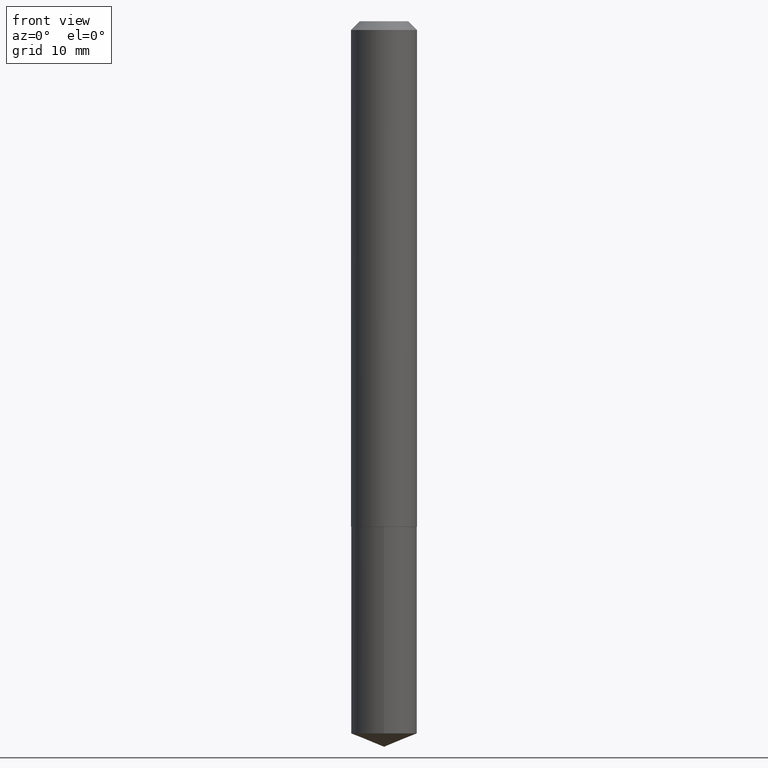
[diagram: clean part render]
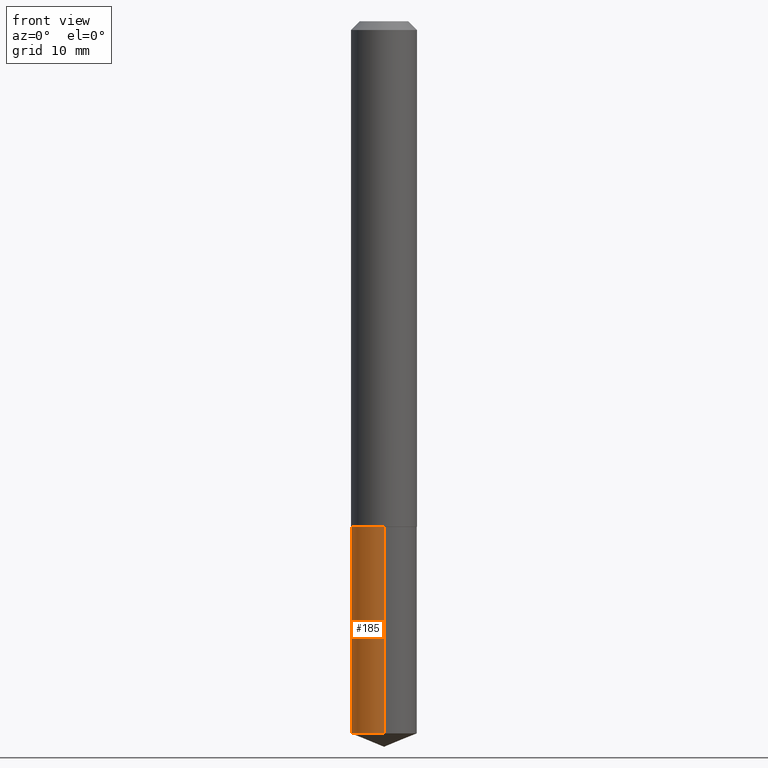
[diagram: same view with one face highlighted and labeled with its STEP entity id]
A machine part, front view. The second image highlights one B-rep face of the part: STEP entity #185.
In plain terms, the highlighted cylindrical surface (edge-blend (fillet) strip) has radius 2.9997 mm, axis along (-0, 0, 1).
Its self-contained STEP definition (entity closure, byte-faithful):
#9 = CARTESIAN_POINT ( 'NONE',  ( 8.391509709327404185E-16, 0.1180999999999910732, -2.550684502728868264 ) ) ;
#27 = VERTEX_POINT ( 'NONE', #9 ) ;
#36 = CYLINDRICAL_SURFACE ( 'NONE', #338, 0.1180999999999999966 ) ;
#44 = DIRECTION ( 'NONE',  ( -6.982962677686265922E-15, -1.000000000000000000, 4.626330217890369336E-15 ) ) ;
#61 = DIRECTION ( 'NONE',  ( -2.431157795965363335E-29, 3.511975520009978246E-15, 1.000000000000000000 ) ) ;
#80 = AXIS2_PLACEMENT_3D ( 'NONE', #143, #61, #265 ) ;
#84 = ORIENTED_EDGE ( 'NONE', *, *, #194, .T. ) ;
#102 = CARTESIAN_POINT ( 'NONE',  ( 8.391509709327224719E-16, 0.1180999999999936823, -1.811000000000000387 ) ) ;
#117 = VERTEX_POINT ( 'NONE', #267 ) ;
#131 = LINE ( 'NONE', #102, #258 ) ;
#143 = CARTESIAN_POINT ( 'NONE',  ( 6.227033753365331904E-29, -8.920826570759473542E-15, -2.550684502728867376 ) ) ;
#162 = CIRCLE ( 'NONE', #227, 0.1180999999999999966 ) ;
#163 = CARTESIAN_POINT ( 'NONE',  ( -8.246878922347036920E-16, -0.1181000000000063110, -1.810999999999999277 ) ) ;
#185 = ADVANCED_FACE ( 'NONE', ( #296 ), #36, .T. ) ;
#194 = EDGE_CURVE ( 'NONE', #292, #363, #230, .T. ) ;
#199 = EDGE_CURVE ( 'NONE', #27, #292, #353, .T. ) ;
#210 = DIRECTION ( 'NONE',  ( -2.431157795965363335E-29, 3.511975520009978246E-15, 1.000000000000000000 ) ) ;
#213 = EDGE_LOOP ( 'NONE', ( #244, #351, #84, #276 ) ) ;
#215 = CARTESIAN_POINT ( 'NONE',  ( 4.428744008001282238E-29, -6.323072704644935995E-15, -1.810999999999999943 ) ) ;
#227 = AXIS2_PLACEMENT_3D ( 'NONE', #215, #337, #44 ) ;
#230 = LINE ( 'NONE', #354, #326 ) ;
#231 = EDGE_CURVE ( 'NONE', #27, #117, #131, .T. ) ;
#244 = ORIENTED_EDGE ( 'NONE', *, *, #231, .F. ) ;
#258 = VECTOR ( 'NONE', #280, 39.37007874015748143 ) ;
#265 = DIRECTION ( 'NONE',  ( -6.982962677686265922E-15, -1.000000000000000000, 4.626330217890369336E-15 ) ) ;
#267 = CARTESIAN_POINT ( 'NONE',  ( 8.391509709327405171E-16, 0.1180999999999936684, -1.811000000000000387 ) ) ;
#276 = ORIENTED_EDGE ( 'NONE', *, *, #313, .F. ) ;
#280 = DIRECTION ( 'NONE',  ( -2.431157795965363055E-29, 3.511975520009978640E-15, 1.000000000000000000 ) ) ;
#292 = VERTEX_POINT ( 'NONE', #309 ) ;
#296 = FACE_OUTER_BOUND ( 'NONE', #213, .T. ) ;
#309 = CARTESIAN_POINT ( 'NONE',  ( -8.246878922346858440E-16, -0.1181000000000088923, -2.550684502728866931 ) ) ;
#313 = EDGE_CURVE ( 'NONE', #117, #363, #162, .T. ) ;
#326 = VECTOR ( 'NONE', #327, 39.37007874015748143 ) ;
#327 = DIRECTION ( 'NONE',  ( -2.431157795965363055E-29, 3.511975520009978640E-15, 1.000000000000000000 ) ) ;
#337 = DIRECTION ( 'NONE',  ( -2.431157795965363335E-29, 3.511975520009978246E-15, 1.000000000000000000 ) ) ;
#338 = AXIS2_PLACEMENT_3D ( 'NONE', #360, #210, #356 ) ;
#351 = ORIENTED_EDGE ( 'NONE', *, *, #199, .T. ) ;
#353 = CIRCLE ( 'NONE', #80, 0.1181000000000000105 ) ;
#354 = CARTESIAN_POINT ( 'NONE',  ( -8.246878922347036920E-16, -0.1181000000000063110, -1.810999999999999277 ) ) ;
#356 = DIRECTION ( 'NONE',  ( -6.982962677686265922E-15, -1.000000000000000000, 4.626330217890369336E-15 ) ) ;
#360 = CARTESIAN_POINT ( 'NONE',  ( 4.428744008001282238E-29, -6.323072704644935995E-15, -1.810999999999999943 ) ) ;
#363 = VERTEX_POINT ( 'NONE', #163 ) ;